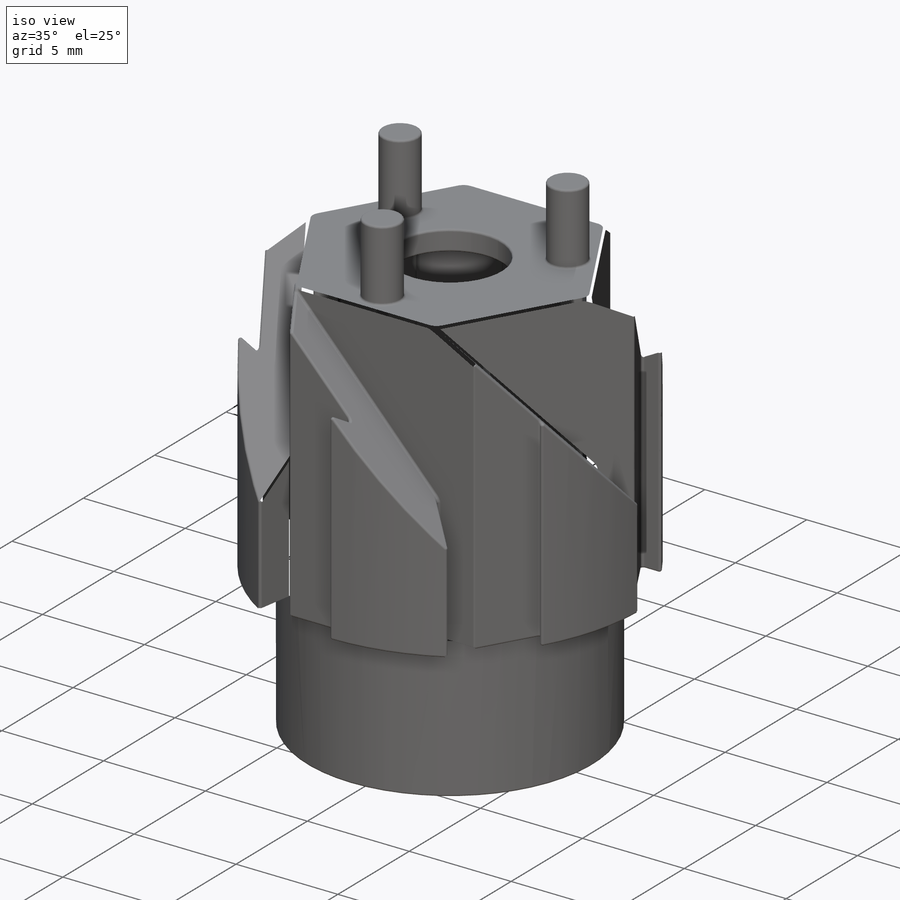
[diagram: iso view]
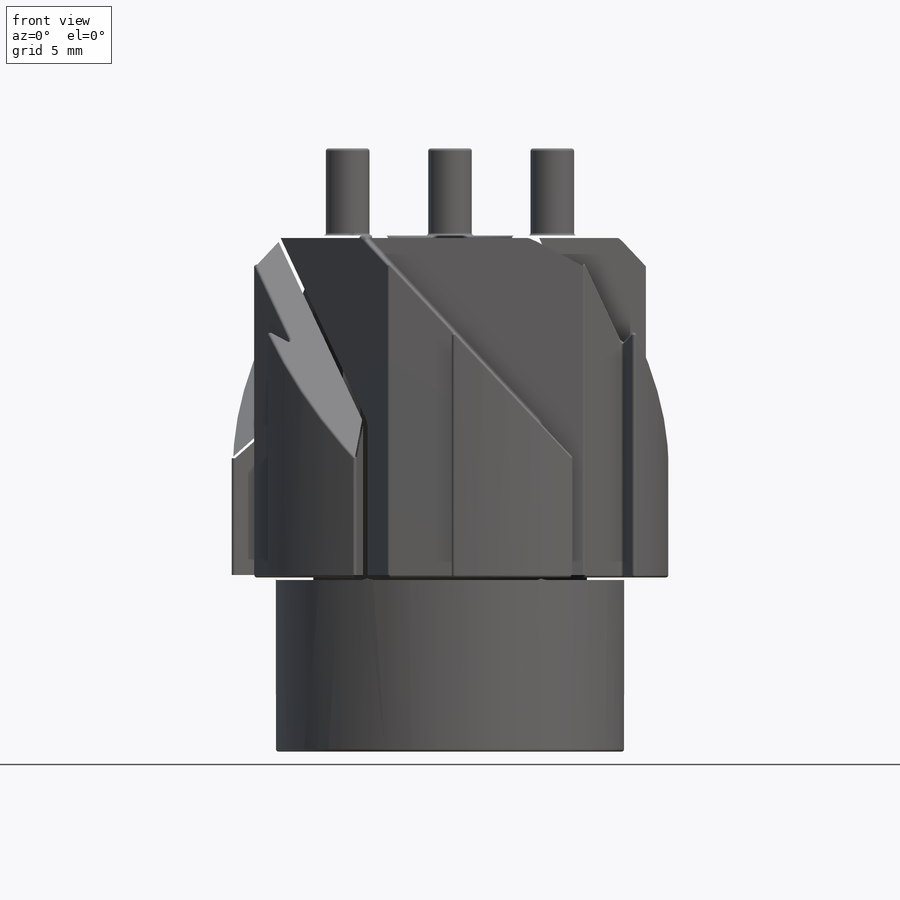
[diagram: front view]
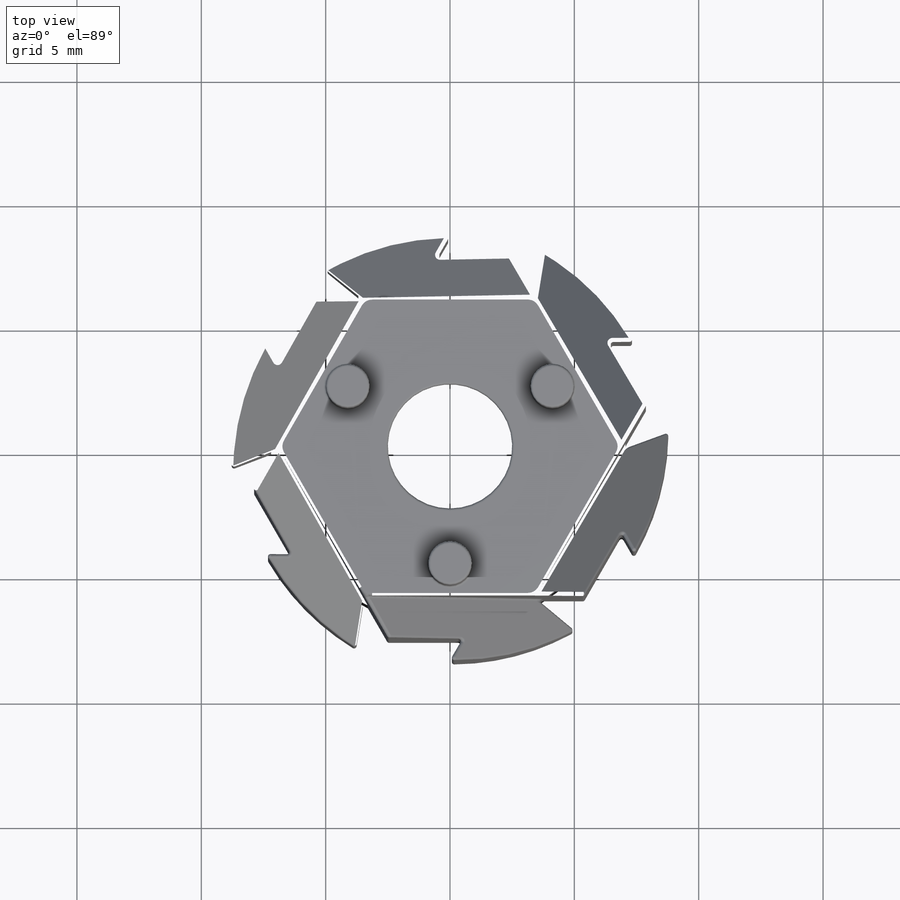
[diagram: top view]
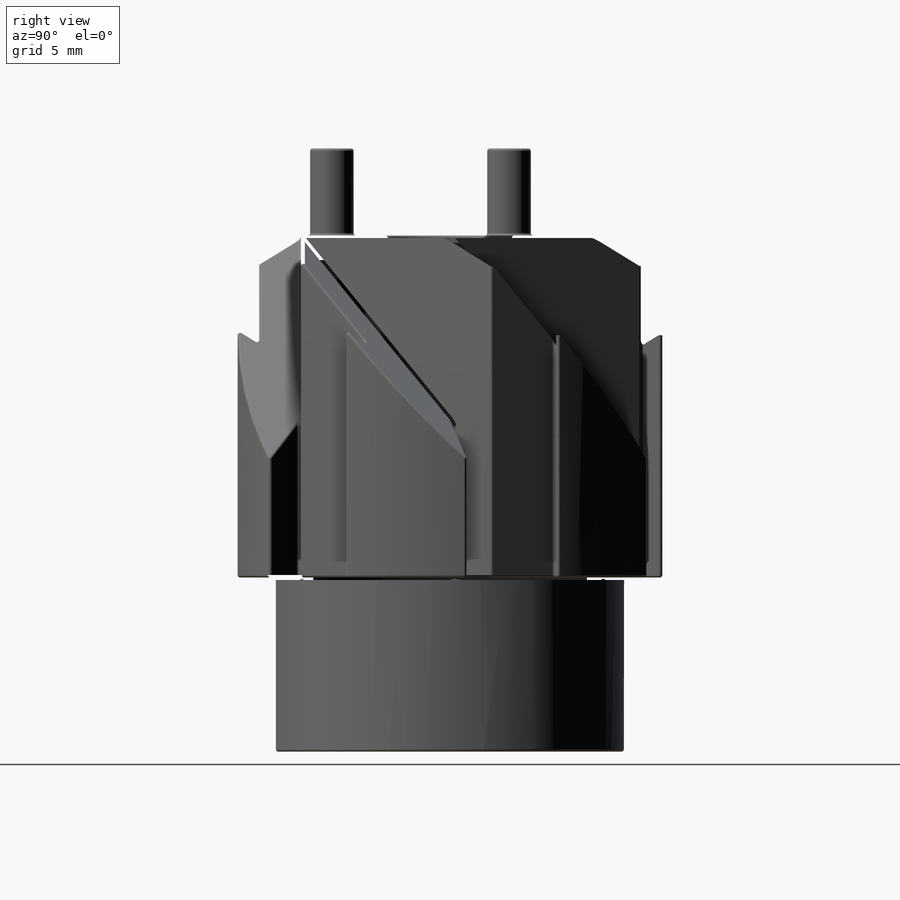
[diagram: right view]
SOLIDWORKS PART (.sldprt)
format: sldprt  version: not decoded by parser v0  size: 1,789,440 bytes
history: native  units: mm
features: sketch x8, extrude x5, fillet x4, pattern_circular x3, cut_extrude x3, material x1, plane x1 (+11 scaffold rows collapsed)
feature tree (36):
  scaffold x11  (default folders/planes/origin — collapsed)
  material  "Material <not specified>"
  sketch  "Sketch2"  dims[D1=14.0mm D2=11.0mm]
  extrude  "Boss-Extrude1"  Depth=7mm
  sketch  "Sketch3"  dims[D1=12.0mm D2=0.0mm]
  extrude  "Boss-Extrude2"  Depth=13.75mm
  sketch  "Sketch4"  dims[c1.D1=~5.19927mm c1.D3=~11.341834mm c1.D7=10.0mm c2.D1=1.5mm c2.D2=3.0mm c2.D3=1.0mm c2.D4=0.25mm c2.D5=0.0mm c2.D6=1.0mm c2.D7=0.0mm c2.D8=1.25mm c2.D9=1.0mm c3.D5=5.0mm c3.D3=1.0mm c3.D4=0.0mm c3.D6=0.5mm]
  extrude  "Boss-Extrude3"  [1 undecoded]
  plane  "Plane1"
  sketch  "Sketch5"  dims[D1=9.0mm D2=8.46mm]
  pattern_circular  "CirPattern1"  Count=6 Angle=360deg
  sketch  "Sketch6"  dims[c1.D1=1.75mm c1.D2=1.75mm c1.D3=1.75mm c1.D4=1.25mm c1.D5=1.25mm c1.D6=1.25mm c1.D7=1.25mm c1.D8=1.25mm c1.D9=~1.73127mm c2.D8=1.25mm c2.D9=1.25mm c2.D4=1.25mm c2.D5=1.25mm c2.D6=1.25mm c2.D7=~1.443376mm c3.D9=~1.443376mm c3.D5=~11.081662mm c4.D5=120.0deg c4.D6=~6.288901mm c5.D6=120.0deg c5.D7=0.0mm c5.D8=0.0mm c5.D9=0.0mm c5.D10=4.75mm c5.D4=4.75mm c5.D11=4.75mm]
  extrude  "Boss-Extrude4"  Depth=3.5mm
  sketch  "Sketch7"  dims[D1=11.0mm]
  cut_extrude  "Cut-Extrude2"  Depth=1mm
  sketch  "Sketch8"  dims[D1=5.0mm]
  cut_extrude  "Cut-Extrude3"  Depth=1mm
  sketch  "Sketch9"  dims[D1=~8.934002mm D2=1.5mm D3=0.75mm]
  extrude  "Boss-Extrude5"  Depth=8mm
  pattern_circular  "CirPattern2"  Count=6 Angle=360deg
  fillet  "Fillet1"  Radius=0.1mm
  cut_extrude  "Cut-Extrude4"  Depth=10mm
  pattern_circular  "CirPattern3"  Count=6 Angle=360deg
  fillet  "Fillet2"  Radius=0.1mm
  fillet  "Fillet3"  Radius=0.1mm
  fillet  "Fillet4"  Radius=0.1mm
decode coverage: 22 of 23 modeling features carry decoded parameters
note: ~ marks probable driven/reference dimensions
note: 1 parameter value undecoded
note: suppression state not decoded; provenance and decode notes live in map.json
